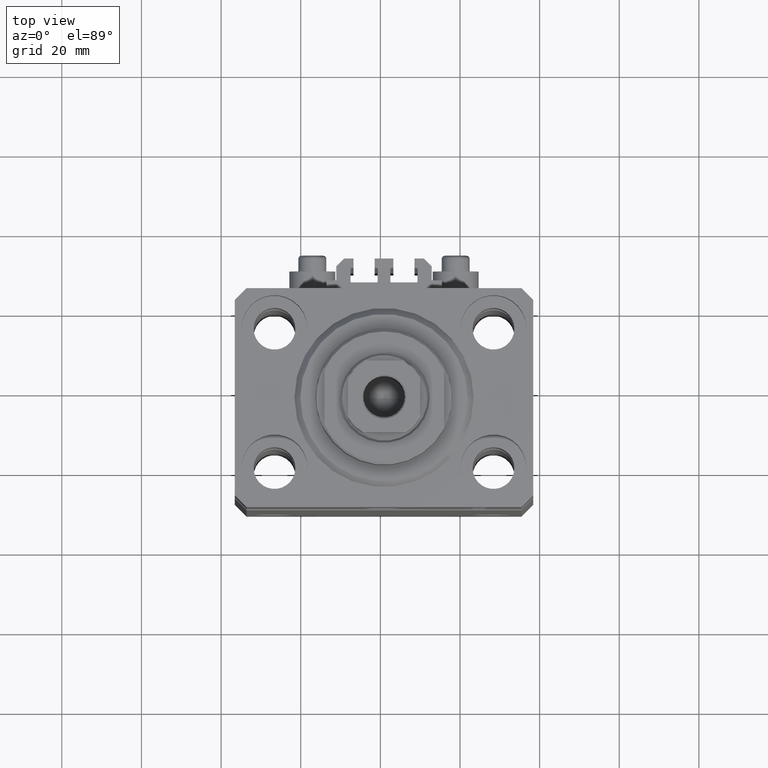
[diagram: clean part render]
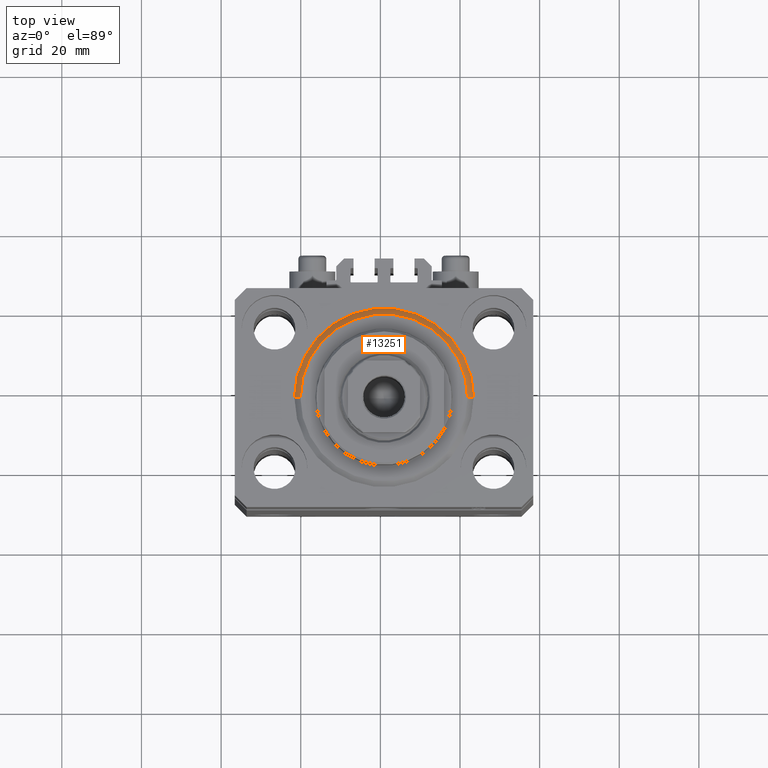
[diagram: same view with one face highlighted and labeled with its STEP entity id]
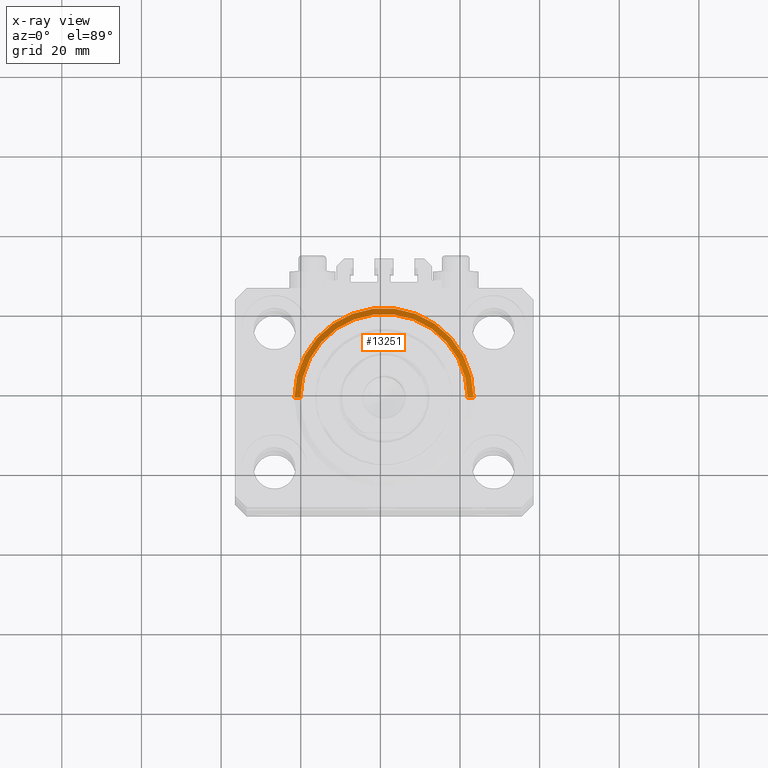
[diagram: x-ray of the same camera — body ghosted, the highlighted face saturated]
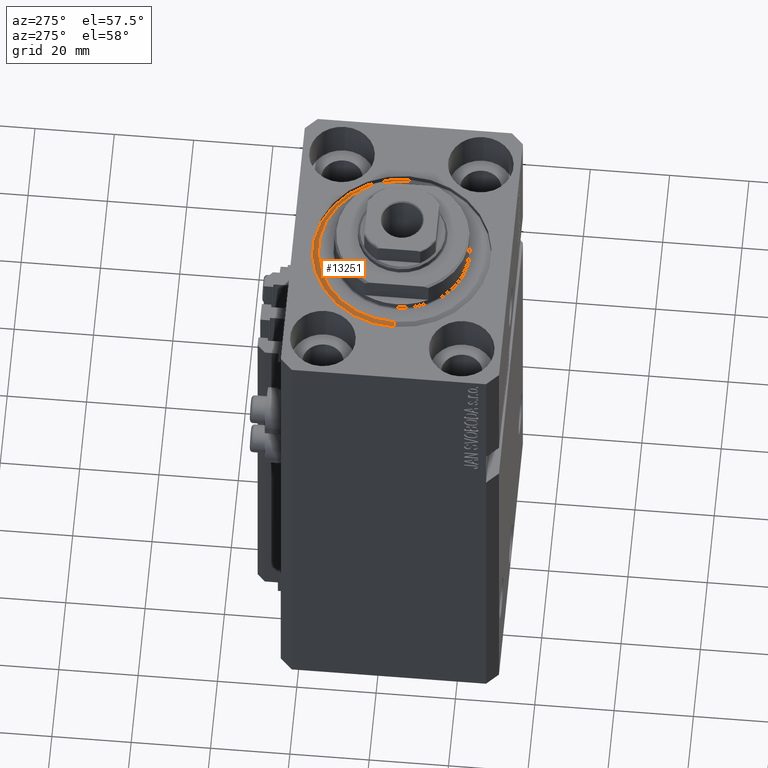
[diagram: same view with one face highlighted and labeled with its STEP entity id]
A machine part, top view. The second image highlights one B-rep face of the part: STEP entity #13251.
The next image is the same camera in x-ray: the body ghosted, the highlighted face saturated — about 0% of this face is hidden behind the body in this view.
A second angle (auxiliary view) of the same face is appended — the face is thin or edge-on in the first view.
In plain terms, the highlighted conical surface has half-angle 45 deg.
Its self-contained STEP definition (entity closure, byte-faithful):
#106 = CONICAL_SURFACE ( 'NONE', #22169, 22.50000000000000355, 0.7853981633974517207 ) ;
#2285 = DIRECTION ( 'NONE',  ( 1.000000000000000000, 0.000000000000000000, 0.000000000000000000 ) ) ;
#2719 = DIRECTION ( 'NONE',  ( -0.000000000000000000, -0.000000000000000000, 1.000000000000000000 ) ) ;
#3086 = DIRECTION ( 'NONE',  ( -0.7071067811865500152, 8.659560562354963673E-17, 0.7071067811865451302 ) ) ;
#3316 = CARTESIAN_POINT ( 'NONE',  ( -22.50000000000000355, 2.755455298081545172E-15, 1.500000000000001332 ) ) ;
#3400 = CARTESIAN_POINT ( 'NONE',  ( 22.50000000000000355, 0.000000000000000000, 1.500000000000001332 ) ) ;
#5155 = ORIENTED_EDGE ( 'NONE', *, *, #19922, .F. ) ;
#6180 = VECTOR ( 'NONE', #3086, 1000.000000000000114 ) ;
#6287 = CARTESIAN_POINT ( 'NONE',  ( 0.000000000000000000, 0.000000000000000000, 1.500000000000001332 ) ) ;
#6618 = EDGE_CURVE ( 'NONE', #12967, #18925, #30447, .T. ) ;
#6664 = LINE ( 'NONE', #3316, #6180 ) ;
#10047 = CIRCLE ( 'NONE', #17721, 22.50000000000000355 ) ;
#12967 = VERTEX_POINT ( 'NONE', #19926 ) ;
#13251 = ADVANCED_FACE ( 'NONE', ( #34411 ), #106, .T. ) ;
#16201 = EDGE_CURVE ( 'NONE', #12967, #19407, #6664, .T. ) ;
#16685 = CARTESIAN_POINT ( 'NONE',  ( 0.000000000000000000, 0.000000000000000000, 1.500000000000001332 ) ) ;
#17721 = AXIS2_PLACEMENT_3D ( 'NONE', #6287, #2719, #35973 ) ;
#18925 = VERTEX_POINT ( 'NONE', #39707 ) ;
#19407 = VERTEX_POINT ( 'NONE', #34337 ) ;
#19922 = EDGE_CURVE ( 'NONE', #18925, #38647, #36196, .T. ) ;
#19926 = CARTESIAN_POINT ( 'NONE',  ( -20.99999999999998934, 2.663606788145492628E-15, 0.000000000000000000 ) ) ;
#20511 = AXIS2_PLACEMENT_3D ( 'NONE', #31465, #46356, #2285 ) ;
#22169 = AXIS2_PLACEMENT_3D ( 'NONE', #16685, #31048, #38026 ) ;
#25649 = DIRECTION ( 'NONE',  ( 0.7071067811865500152, 0.000000000000000000, 0.7071067811865451302 ) ) ;
#28495 = VECTOR ( 'NONE', #25649, 1000.000000000000114 ) ;
#30447 = CIRCLE ( 'NONE', #20511, 20.99999999999998934 ) ;
#31048 = DIRECTION ( 'NONE',  ( -0.000000000000000000, -0.000000000000000000, 1.000000000000000000 ) ) ;
#31465 = CARTESIAN_POINT ( 'NONE',  ( 0.000000000000000000, 0.000000000000000000, 0.000000000000000000 ) ) ;
#33652 = EDGE_LOOP ( 'NONE', ( #34995, #42983, #42392, #5155 ) ) ;
#34337 = CARTESIAN_POINT ( 'NONE',  ( -22.50000000000000355, 0.000000000000000000, 1.500000000000001332 ) ) ;
#34411 = FACE_OUTER_BOUND ( 'NONE', #33652, .T. ) ;
#34995 = ORIENTED_EDGE ( 'NONE', *, *, #6618, .F. ) ;
#35973 = DIRECTION ( 'NONE',  ( 1.000000000000000000, 0.000000000000000000, 0.000000000000000000 ) ) ;
#36131 = EDGE_CURVE ( 'NONE', #38647, #19407, #10047, .T. ) ;
#36196 = LINE ( 'NONE', #3400, #28495 ) ;
#36744 = CARTESIAN_POINT ( 'NONE',  ( 22.50000000000000355, 2.755455298081545172E-15, 1.500000000000001332 ) ) ;
#38026 = DIRECTION ( 'NONE',  ( 1.000000000000000000, 0.000000000000000000, 0.000000000000000000 ) ) ;
#38647 = VERTEX_POINT ( 'NONE', #36744 ) ;
#39707 = CARTESIAN_POINT ( 'NONE',  ( 20.99999999999998934, 0.000000000000000000, 0.000000000000000000 ) ) ;
#42392 = ORIENTED_EDGE ( 'NONE', *, *, #36131, .F. ) ;
#42983 = ORIENTED_EDGE ( 'NONE', *, *, #16201, .T. ) ;
#46356 = DIRECTION ( 'NONE',  ( -0.000000000000000000, -0.000000000000000000, -1.000000000000000000 ) ) ;